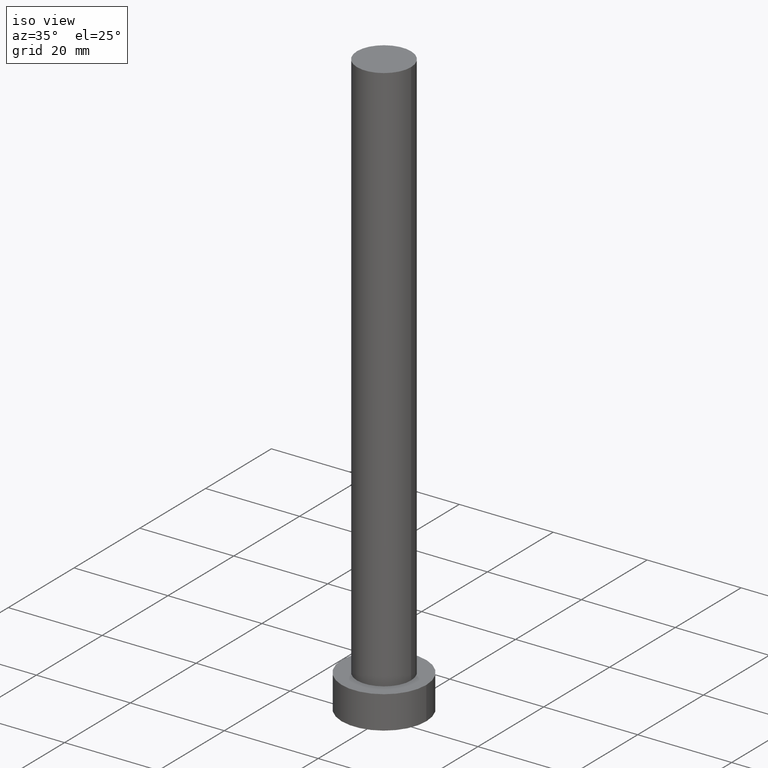
[diagram: clean part render]
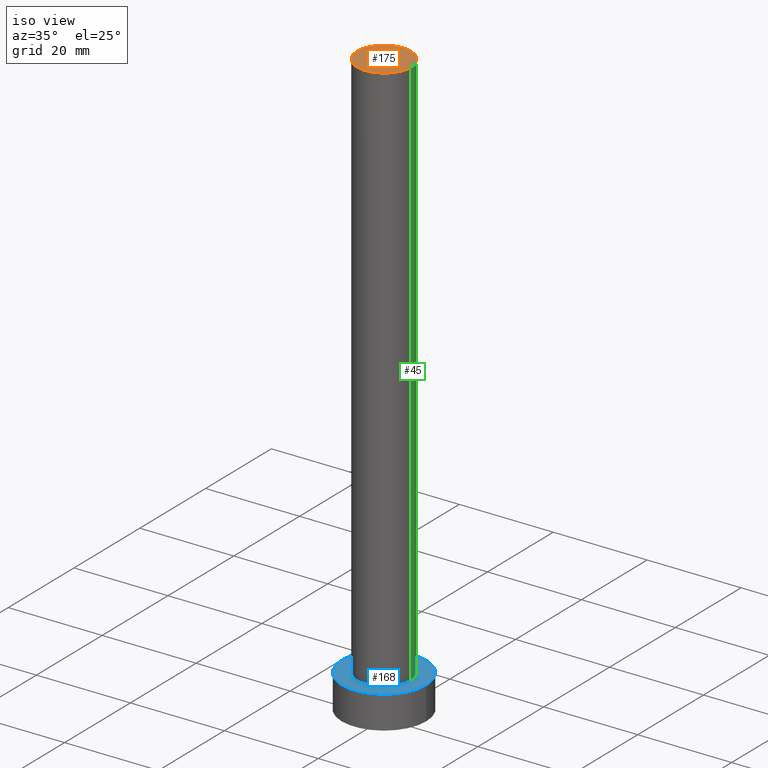
[diagram: same view with three faces highlighted in distinct colors, each labeled with its STEP entity id]
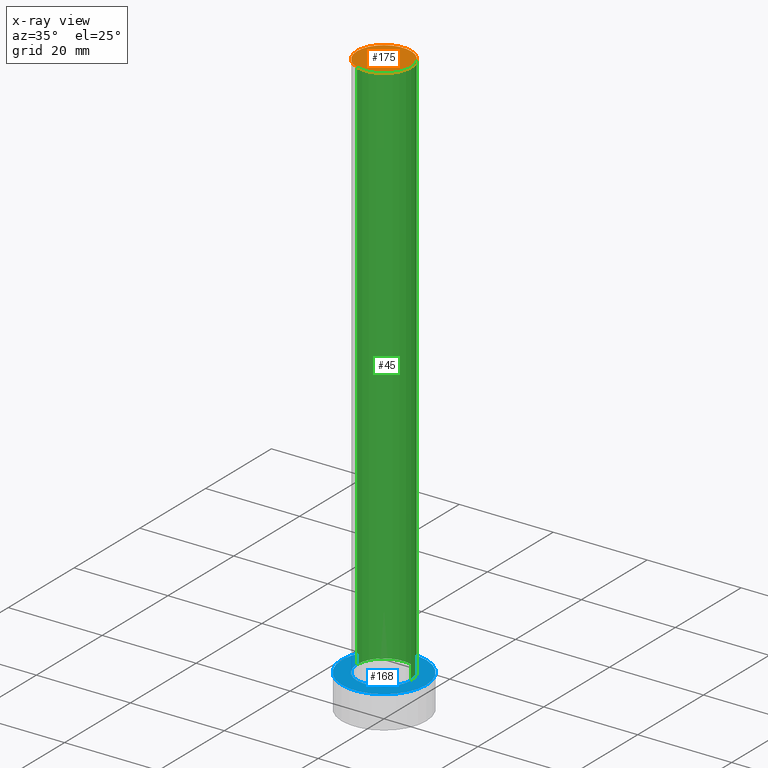
[diagram: x-ray of the same camera — body ghosted, the three highlighted faces saturated]
A machine part, iso view with three faces highlighted in distinct colors.
The next image is the same camera in x-ray (body ghosted, the three faces saturated) — at least one of them is partly hidden behind the body in this view.
Their STEP definitions:

[orange] entity #175 — the highlighted planar face has unit normal (0, 0, 1).
#9 = AXIS2_PLACEMENT_3D ( 'NONE', #80, #160, #56 ) ;
#12 = EDGE_CURVE ( 'NONE', #146, #132, #203, .T. ) ;
#25 = DIRECTION ( 'NONE',  ( 1.000000000000000000, 0.000000000000000000, 0.000000000000000000 ) ) ;
#52 = CARTESIAN_POINT ( 'NONE',  ( 0.000000000000000000, 0.000000000000000000, 125.0000000000000000 ) ) ;
#56 = DIRECTION ( 'NONE',  ( 1.000000000000000000, 0.000000000000000000, -0.000000000000000000 ) ) ;
#69 = AXIS2_PLACEMENT_3D ( 'NONE', #200, #216, #25 ) ;
#78 = CIRCLE ( 'NONE', #248, 5.750000000000000000 ) ;
#80 = CARTESIAN_POINT ( 'NONE',  ( 0.000000000000000000, 0.000000000000000000, 125.0000000000000000 ) ) ;
#122 = EDGE_CURVE ( 'NONE', #132, #146, #78, .T. ) ;
#127 = ORIENTED_EDGE ( 'NONE', *, *, #122, .T. ) ;
#132 = VERTEX_POINT ( 'NONE', #134 ) ;
#134 = CARTESIAN_POINT ( 'NONE',  ( -5.750000000000000000, 0.000000000000000000, 125.0000000000000000 ) ) ;
#146 = VERTEX_POINT ( 'NONE', #173 ) ;
#160 = DIRECTION ( 'NONE',  ( 0.000000000000000000, 0.000000000000000000, 1.000000000000000000 ) ) ;
#173 = CARTESIAN_POINT ( 'NONE',  ( 5.750000000000000000, 7.041719095097280880E-16, 125.0000000000000000 ) ) ;
#175 = ADVANCED_FACE ( 'NONE', ( #210 ), #254, .T. ) ;
#200 = CARTESIAN_POINT ( 'NONE',  ( 0.000000000000000000, 0.000000000000000000, 125.0000000000000000 ) ) ;
#203 = CIRCLE ( 'NONE', #69, 5.750000000000000000 ) ;
#210 = FACE_OUTER_BOUND ( 'NONE', #238, .T. ) ;
#214 = ORIENTED_EDGE ( 'NONE', *, *, #12, .T. ) ;
#216 = DIRECTION ( 'NONE',  ( 0.000000000000000000, 0.000000000000000000, 1.000000000000000000 ) ) ;
#222 = DIRECTION ( 'NONE',  ( 0.000000000000000000, 0.000000000000000000, 1.000000000000000000 ) ) ;
#225 = DIRECTION ( 'NONE',  ( 1.000000000000000000, 0.000000000000000000, 0.000000000000000000 ) ) ;
#238 = EDGE_LOOP ( 'NONE', ( #127, #214 ) ) ;
#248 = AXIS2_PLACEMENT_3D ( 'NONE', #52, #222, #225 ) ;
#254 = PLANE ( 'NONE',  #9 ) ;

[blue] entity #168 — the highlighted planar face has unit normal (0, 0, 1).
#2 = ORIENTED_EDGE ( 'NONE', *, *, #125, .F. ) ;
#4 = EDGE_CURVE ( 'NONE', #95, #42, #116, .T. ) ;
#6 = ORIENTED_EDGE ( 'NONE', *, *, #227, .F. ) ;
#11 = DIRECTION ( 'NONE',  ( 1.000000000000000000, 0.000000000000000000, 0.000000000000000000 ) ) ;
#20 = CIRCLE ( 'NONE', #180, 5.750000000000000000 ) ;
#21 = VERTEX_POINT ( 'NONE', #156 ) ;
#28 = AXIS2_PLACEMENT_3D ( 'NONE', #77, #209, #48 ) ;
#31 = AXIS2_PLACEMENT_3D ( 'NONE', #235, #215, #43 ) ;
#37 = PLANE ( 'NONE',  #115 ) ;
#38 = FACE_BOUND ( 'NONE', #166, .T. ) ;
#41 = AXIS2_PLACEMENT_3D ( 'NONE', #101, #244, #76 ) ;
#42 = VERTEX_POINT ( 'NONE', #242 ) ;
#43 = DIRECTION ( 'NONE',  ( 1.000000000000000000, 0.000000000000000000, 0.000000000000000000 ) ) ;
#48 = DIRECTION ( 'NONE',  ( 1.000000000000000000, 0.000000000000000000, 0.000000000000000000 ) ) ;
#67 = ORIENTED_EDGE ( 'NONE', *, *, #94, .T. ) ;
#76 = DIRECTION ( 'NONE',  ( 1.000000000000000000, 0.000000000000000000, 0.000000000000000000 ) ) ;
#77 = CARTESIAN_POINT ( 'NONE',  ( 0.000000000000000000, 0.000000000000000000, 7.000000000000000000 ) ) ;
#93 = VERTEX_POINT ( 'NONE', #169 ) ;
#94 = EDGE_CURVE ( 'NONE', #42, #95, #157, .T. ) ;
#95 = VERTEX_POINT ( 'NONE', #153 ) ;
#101 = CARTESIAN_POINT ( 'NONE',  ( 0.000000000000000000, 0.000000000000000000, 7.000000000000000000 ) ) ;
#115 = AXIS2_PLACEMENT_3D ( 'NONE', #193, #249, #230 ) ;
#116 = CIRCLE ( 'NONE', #31, 9.000000000000000000 ) ;
#120 = FACE_OUTER_BOUND ( 'NONE', #150, .T. ) ;
#125 = EDGE_CURVE ( 'NONE', #21, #93, #144, .T. ) ;
#131 = DIRECTION ( 'NONE',  ( 0.000000000000000000, 0.000000000000000000, 1.000000000000000000 ) ) ;
#136 = CARTESIAN_POINT ( 'NONE',  ( 0.000000000000000000, 0.000000000000000000, 7.000000000000000000 ) ) ;
#144 = CIRCLE ( 'NONE', #28, 5.750000000000000000 ) ;
#150 = EDGE_LOOP ( 'NONE', ( #199, #67 ) ) ;
#153 = CARTESIAN_POINT ( 'NONE',  ( -9.000000000000000000, 0.000000000000000000, 7.000000000000000000 ) ) ;
#156 = CARTESIAN_POINT ( 'NONE',  ( -5.750000000000000000, 0.000000000000000000, 7.000000000000000000 ) ) ;
#157 = CIRCLE ( 'NONE', #41, 9.000000000000000000 ) ;
#166 = EDGE_LOOP ( 'NONE', ( #2, #6 ) ) ;
#168 = ADVANCED_FACE ( 'NONE', ( #38, #120 ), #37, .T. ) ;
#169 = CARTESIAN_POINT ( 'NONE',  ( 5.750000000000000000, 7.041719095097280880E-16, 7.000000000000000000 ) ) ;
#180 = AXIS2_PLACEMENT_3D ( 'NONE', #136, #131, #11 ) ;
#193 = CARTESIAN_POINT ( 'NONE',  ( 0.000000000000000000, 0.000000000000000000, 7.000000000000000000 ) ) ;
#199 = ORIENTED_EDGE ( 'NONE', *, *, #4, .T. ) ;
#209 = DIRECTION ( 'NONE',  ( 0.000000000000000000, 0.000000000000000000, 1.000000000000000000 ) ) ;
#215 = DIRECTION ( 'NONE',  ( 0.000000000000000000, 0.000000000000000000, 1.000000000000000000 ) ) ;
#227 = EDGE_CURVE ( 'NONE', #93, #21, #20, .T. ) ;
#230 = DIRECTION ( 'NONE',  ( 1.000000000000000000, 0.000000000000000000, -0.000000000000000000 ) ) ;
#235 = CARTESIAN_POINT ( 'NONE',  ( 0.000000000000000000, 0.000000000000000000, 7.000000000000000000 ) ) ;
#242 = CARTESIAN_POINT ( 'NONE',  ( 9.000000000000000000, 1.102182119232617714E-15, 7.000000000000000000 ) ) ;
#244 = DIRECTION ( 'NONE',  ( 0.000000000000000000, 0.000000000000000000, 1.000000000000000000 ) ) ;
#249 = DIRECTION ( 'NONE',  ( 0.000000000000000000, 0.000000000000000000, 1.000000000000000000 ) ) ;

[green] entity #45 — the highlighted cylindrical surface (edge-blend (fillet) strip) has radius 5.75 mm, axis along (-0, -0, -1).
#11 = DIRECTION ( 'NONE',  ( 1.000000000000000000, 0.000000000000000000, 0.000000000000000000 ) ) ;
#12 = EDGE_CURVE ( 'NONE', #146, #132, #203, .T. ) ;
#20 = CIRCLE ( 'NONE', #180, 5.750000000000000000 ) ;
#21 = VERTEX_POINT ( 'NONE', #156 ) ;
#25 = DIRECTION ( 'NONE',  ( 1.000000000000000000, 0.000000000000000000, 0.000000000000000000 ) ) ;
#45 = ADVANCED_FACE ( 'NONE', ( #114 ), #155, .T. ) ;
#49 = DIRECTION ( 'NONE',  ( -0.000000000000000000, -0.000000000000000000, -1.000000000000000000 ) ) ;
#66 = ORIENTED_EDGE ( 'NONE', *, *, #12, .F. ) ;
#69 = AXIS2_PLACEMENT_3D ( 'NONE', #200, #216, #25 ) ;
#85 = CARTESIAN_POINT ( 'NONE',  ( -5.750000000000000000, 0.000000000000000000, 125.0000000000000000 ) ) ;
#91 = VECTOR ( 'NONE', #49, 1000.000000000000000 ) ;
#93 = VERTEX_POINT ( 'NONE', #169 ) ;
#103 = DIRECTION ( 'NONE',  ( -1.000000000000000000, 0.000000000000000000, 0.000000000000000000 ) ) ;
#112 = ORIENTED_EDGE ( 'NONE', *, *, #224, .F. ) ;
#114 = FACE_OUTER_BOUND ( 'NONE', #181, .T. ) ;
#128 = ORIENTED_EDGE ( 'NONE', *, *, #142, .T. ) ;
#130 = ORIENTED_EDGE ( 'NONE', *, *, #227, .T. ) ;
#131 = DIRECTION ( 'NONE',  ( 0.000000000000000000, 0.000000000000000000, 1.000000000000000000 ) ) ;
#132 = VERTEX_POINT ( 'NONE', #134 ) ;
#134 = CARTESIAN_POINT ( 'NONE',  ( -5.750000000000000000, 0.000000000000000000, 125.0000000000000000 ) ) ;
#136 = CARTESIAN_POINT ( 'NONE',  ( 0.000000000000000000, 0.000000000000000000, 7.000000000000000000 ) ) ;
#137 = LINE ( 'NONE', #206, #202 ) ;
#142 = EDGE_CURVE ( 'NONE', #146, #93, #137, .T. ) ;
#146 = VERTEX_POINT ( 'NONE', #173 ) ;
#154 = DIRECTION ( 'NONE',  ( -0.000000000000000000, -0.000000000000000000, -1.000000000000000000 ) ) ;
#155 = CYLINDRICAL_SURFACE ( 'NONE', #228, 5.750000000000000000 ) ;
#156 = CARTESIAN_POINT ( 'NONE',  ( -5.750000000000000000, 0.000000000000000000, 7.000000000000000000 ) ) ;
#169 = CARTESIAN_POINT ( 'NONE',  ( 5.750000000000000000, 7.041719095097280880E-16, 7.000000000000000000 ) ) ;
#173 = CARTESIAN_POINT ( 'NONE',  ( 5.750000000000000000, 7.041719095097280880E-16, 125.0000000000000000 ) ) ;
#180 = AXIS2_PLACEMENT_3D ( 'NONE', #136, #131, #11 ) ;
#181 = EDGE_LOOP ( 'NONE', ( #66, #128, #130, #112 ) ) ;
#200 = CARTESIAN_POINT ( 'NONE',  ( 0.000000000000000000, 0.000000000000000000, 125.0000000000000000 ) ) ;
#202 = VECTOR ( 'NONE', #231, 1000.000000000000000 ) ;
#203 = CIRCLE ( 'NONE', #69, 5.750000000000000000 ) ;
#206 = CARTESIAN_POINT ( 'NONE',  ( 5.750000000000000000, 7.041719095097280880E-16, 125.0000000000000000 ) ) ;
#216 = DIRECTION ( 'NONE',  ( 0.000000000000000000, 0.000000000000000000, 1.000000000000000000 ) ) ;
#224 = EDGE_CURVE ( 'NONE', #132, #21, #251, .T. ) ;
#226 = CARTESIAN_POINT ( 'NONE',  ( 0.000000000000000000, 0.000000000000000000, 125.0000000000000000 ) ) ;
#227 = EDGE_CURVE ( 'NONE', #93, #21, #20, .T. ) ;
#228 = AXIS2_PLACEMENT_3D ( 'NONE', #226, #154, #103 ) ;
#231 = DIRECTION ( 'NONE',  ( -0.000000000000000000, -0.000000000000000000, -1.000000000000000000 ) ) ;
#251 = LINE ( 'NONE', #85, #91 ) ;